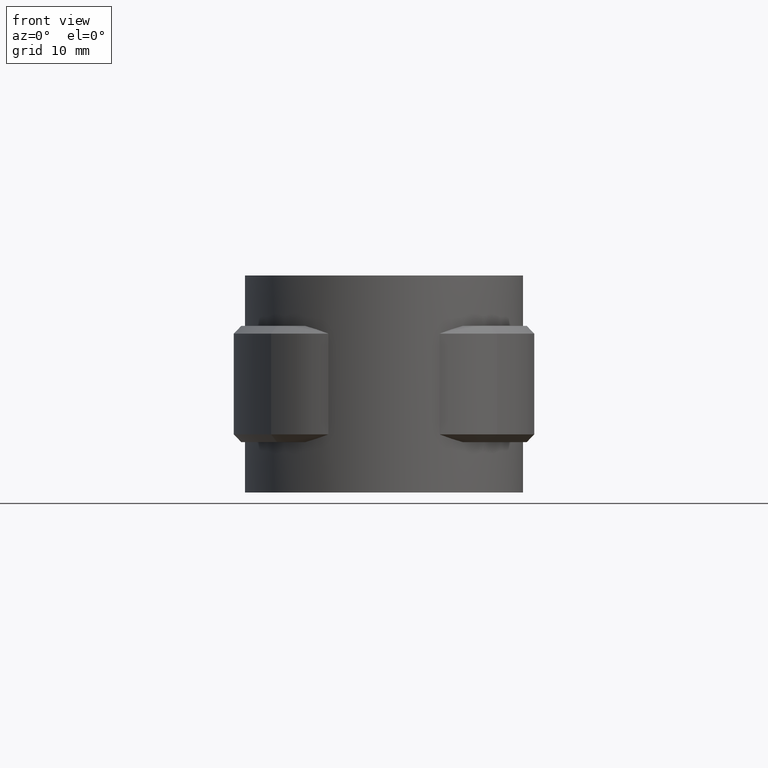
[diagram: clean part render]
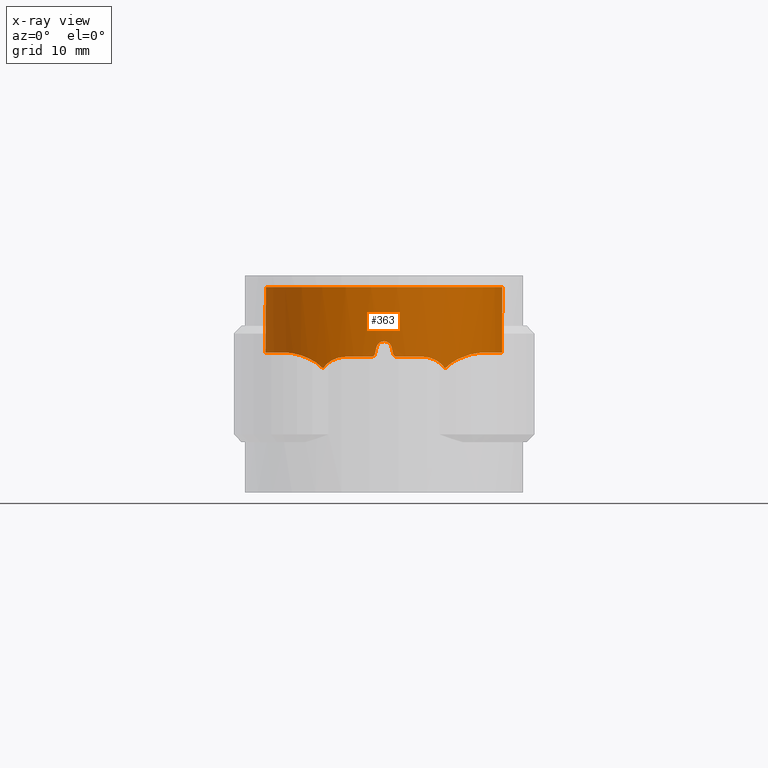
[diagram: x-ray — body ghosted, one internal face saturated and labeled with its STEP entity id]
A machine part, front view, then the same camera in x-ray: the body is ghosted and one INTERNAL B-rep face — a face not visible from any outside direction — is saturated and labeled: STEP entity #363.
In plain terms, the highlighted cylindrical surface (partial cylindrical patch) has radius 15.3 mm, axis along (0, 0, -1).
Its self-contained STEP definition (entity closure, byte-faithful):
#363 = ADVANCED_FACE( '', ( #702 ), #703, .T. );
#702 = FACE_OUTER_BOUND( '', #1430, .T. );
#703 = CYLINDRICAL_SURFACE( '', #1431, 15.3000000000000 );
#1430 = EDGE_LOOP( '', ( #2806, #2807, #2808, #2809, #2810, #2811, #2812, #2813, #2814, #2815, #2816, #2817, #2818, #2819, #2820, #2821 ) );
#1431 = AXIS2_PLACEMENT_3D( '', #2822, #2823, #2824 );
#2806 = ORIENTED_EDGE( '', *, *, #6200, .F. );
#2807 = ORIENTED_EDGE( '', *, *, #6201, .F. );
#2808 = ORIENTED_EDGE( '', *, *, #6202, .F. );
#2809 = ORIENTED_EDGE( '', *, *, #6203, .F. );
#2810 = ORIENTED_EDGE( '', *, *, #6204, .F. );
#2811 = ORIENTED_EDGE( '', *, *, #6205, .T. );
#2812 = ORIENTED_EDGE( '', *, *, #6206, .F. );
#2813 = ORIENTED_EDGE( '', *, *, #6207, .F. );
#2814 = ORIENTED_EDGE( '', *, *, #6208, .F. );
#2815 = ORIENTED_EDGE( '', *, *, #6209, .F. );
#2816 = ORIENTED_EDGE( '', *, *, #6210, .F. );
#2817 = ORIENTED_EDGE( '', *, *, #6211, .F. );
#2818 = ORIENTED_EDGE( '', *, *, #6212, .F. );
#2819 = ORIENTED_EDGE( '', *, *, #6213, .F. );
#2820 = ORIENTED_EDGE( '', *, *, #6214, .F. );
#2821 = ORIENTED_EDGE( '', *, *, #6215, .F. );
#2822 = CARTESIAN_POINT( '', ( 0.000000000000000, 0.000000000000000, 0.000000000000000 ) );
#2823 = DIRECTION( '', ( 0.000000000000000, 0.000000000000000, -1.00000000000000 ) );
#2824 = DIRECTION( '', ( 1.00000000000000, -6.12303176911189E-017, 0.000000000000000 ) );
#6200 = EDGE_CURVE( '', #7110, #7111, #7112, .T. );
#6201 = EDGE_CURVE( '', #7113, #7110, #7114, .T. );
#6202 = EDGE_CURVE( '', #7115, #7113, #7116, .T. );
#6203 = EDGE_CURVE( '', #7117, #7115, #7118, .T. );
#6204 = EDGE_CURVE( '', #7119, #7117, #7120, .T. );
#6205 = EDGE_CURVE( '', #7119, #7121, #7122, .T. );
#6206 = EDGE_CURVE( '', #7123, #7121, #7124, .T. );
#6207 = EDGE_CURVE( '', #7125, #7123, #7126, .T. );
#6208 = EDGE_CURVE( '', #7127, #7125, #7128, .T. );
#6209 = EDGE_CURVE( '', #7129, #7127, #7130, .T. );
#6210 = EDGE_CURVE( '', #7131, #7129, #7132, .T. );
#6211 = EDGE_CURVE( '', #7133, #7131, #7134, .T. );
#6212 = EDGE_CURVE( '', #7135, #7133, #7136, .T. );
#6213 = EDGE_CURVE( '', #7137, #7135, #7138, .T. );
#6214 = EDGE_CURVE( '', #7139, #7137, #7140, .T. );
#6215 = EDGE_CURVE( '', #7111, #7139, #7141, .T. );
#7110 = VERTEX_POINT( '', #8622 );
#7111 = VERTEX_POINT( '', #8623 );
#7112 = B_SPLINE_CURVE_WITH_KNOTS( '', 3, ( #8624, #8625, #8626, #8627, #8628, #8629, #8630, #8631, #8632, #8633 ), .UNSPECIFIED., .F., .F., ( 4, 2, 2, 2, 4 ), ( 3.13586956447804E-016, 0.000900885726990970, 0.00180177145398163, 0.00270265718097228, 0.00360354290796294 ), .UNSPECIFIED. );
#7113 = VERTEX_POINT( '', #8634 );
#7114 = B_SPLINE_CURVE_WITH_KNOTS( '', 3, ( #8635, #8636, #8637, #8638, #8639, #8640, #8641, #8642, #8643, #8644, #8645, #8646 ), .UNSPECIFIED., .F., .F., ( 4, 2, 2, 2, 2, 4 ), ( 0.000000000000000, 0.00173480708891775, 0.00346961417783549, 0.00433701772229437, 0.00520442126675325, 0.00693922835567100 ), .UNSPECIFIED. );
#7115 = VERTEX_POINT( '', #8647 );
#7116 = B_SPLINE_CURVE_WITH_KNOTS( '', 3, ( #8648, #8649, #8650, #8651, #8652, #8653, #8654, #8655, #8656, #8657, #8658, #8659, #8660, #8661, #8662, #8663, #8664, #8665, #8666, #8667, #8668, #8669, #8670, #8671 ), .UNSPECIFIED., .F., .F., ( 4, 2, 2, 2, 2, 2, 2, 2, 2, 2, 2, 4 ), ( 0.000000000000000, 0.00337849067238586, 0.00506773600857879, 0.00675698134477171, 0.00844622668096464, 0.0101354720171576, 0.0135139626895434, 0.0152032080257364, 0.0168924533619293, 0.0202709440343151, 0.0236494347067010, 0.0270279253790868 ), .UNSPECIFIED. );
#7117 = VERTEX_POINT( '', #8672 );
#7118 = LINE( '', #8673, #8674 );
#7119 = VERTEX_POINT( '', #8675 );
#7120 = CIRCLE( '', #8676, 15.3000000000000 );
#7121 = VERTEX_POINT( '', #8677 );
#7122 = LINE( '', #8678, #8679 );
#7123 = VERTEX_POINT( '', #8680 );
#7124 = B_SPLINE_CURVE_WITH_KNOTS( '', 3, ( #8681, #8682, #8683, #8684, #8685, #8686, #8687, #8688, #8689, #8690, #8691, #8692, #8693, #8694, #8695, #8696, #8697, #8698, #8699, #8700, #8701, #8702, #8703, #8704 ), .UNSPECIFIED., .F., .F., ( 4, 2, 2, 2, 2, 2, 2, 2, 2, 2, 2, 4 ), ( 0.000000000000000, 0.00337848974913548, 0.00506773462370322, 0.00675697949827097, 0.00844622437283871, 0.0101354692474065, 0.0135139589965419, 0.0152032038711097, 0.0168924487456774, 0.0202709384948129, 0.0236494282439484, 0.0270279179930839 ), .UNSPECIFIED. );
#7125 = VERTEX_POINT( '', #8705 );
#7126 = B_SPLINE_CURVE_WITH_KNOTS( '', 3, ( #8706, #8707, #8708, #8709, #8710, #8711, #8712, #8713, #8714, #8715, #8716, #8717, #8718, #8719, #8720, #8721 ), .UNSPECIFIED., .F., .F., ( 4, 2, 2, 2, 2, 2, 2, 4 ), ( 0.000000000000000, 0.000872914016519953, 0.00174582803303991, 0.00261874204955986, 0.00349165606607981, 0.00436457008259976, 0.00523748409911972, 0.00698331213215963 ), .UNSPECIFIED. );
#7127 = VERTEX_POINT( '', #8722 );
#7128 = B_SPLINE_CURVE_WITH_KNOTS( '', 3, ( #8723, #8724, #8725, #8726, #8727, #8728, #8729, #8730, #8731, #8732 ), .UNSPECIFIED., .F., .F., ( 4, 2, 2, 2, 4 ), ( 4.67088590647017E-018, 0.000900864509549203, 0.00180172901909840, 0.00270259352864760, 0.00360345803819680 ), .UNSPECIFIED. );
#7129 = VERTEX_POINT( '', #8733 );
#7130 = CIRCLE( '', #8734, 15.3000000000000 );
#7131 = VERTEX_POINT( '', #8735 );
#7132 = B_SPLINE_CURVE_WITH_KNOTS( '', 3, ( #8736, #8737, #8738, #8739, #8740, #8741 ), .UNSPECIFIED., .F., .F., ( 4, 2, 4 ), ( 2.16840434497101E-019, 0.000336655613353340, 0.000673311226706680 ), .UNSPECIFIED. );
#7133 = VERTEX_POINT( '', #8742 );
#7134 = ELLIPSE( '', #8743, 69.7000711111877, 15.3000000000000 );
#7135 = VERTEX_POINT( '', #8744 );
#7136 = B_SPLINE_CURVE_WITH_KNOTS( '', 3, ( #8745, #8746, #8747, #8748, #8749, #8750, #8751, #8752, #8753, #8754 ), .UNSPECIFIED., .F., .F., ( 4, 2, 2, 2, 4 ), ( 1.81745402302524E-018, 0.000671750243631354, 0.00134350048726271, 0.00201525073089406, 0.00268700097452541 ), .UNSPECIFIED. );
#7137 = VERTEX_POINT( '', #8755 );
#7138 = ELLIPSE( '', #8756, 69.7000355555816, 15.3000000000000 );
#7139 = VERTEX_POINT( '', #8757 );
#7140 = B_SPLINE_CURVE_WITH_KNOTS( '', 3, ( #8758, #8759, #8760, #8761, #8762, #8763 ), .UNSPECIFIED., .F., .F., ( 4, 2, 4 ), ( 5.89869754982740E-018, 0.000336638865399028, 0.000673277730798049 ), .UNSPECIFIED. );
#7141 = CIRCLE( '', #8764, 15.3000000000000 );
#8622 = CARTESIAN_POINT( '', ( 7.87194993485694, -13.1195428359035, -10.4995241636864 ) );
#8623 = CARTESIAN_POINT( '', ( 4.99999999999997, -14.4599446748596, -9.00000000000000 ) );
#8624 = CARTESIAN_POINT( '', ( 7.87194993485715, -13.1195428359033, -10.4995241636866 ) );
#8625 = CARTESIAN_POINT( '', ( 7.70710706974325, -13.2184513723917, -10.2628702400891 ) );
#8626 = CARTESIAN_POINT( '', ( 7.51936762164811, -13.3268833532557, -10.0545275191080 ) );
#8627 = CARTESIAN_POINT( '', ( 7.10097256380919, -13.5544420021188, -9.68691216739862 ) );
#8628 = CARTESIAN_POINT( '', ( 6.86771838668188, -13.6747400828048, -9.52707275819633 ) );
#8629 = CARTESIAN_POINT( '', ( 6.37702478648339, -13.9103424488261, -9.27037601346250 ) );
#8630 = CARTESIAN_POINT( '', ( 6.11728630490065, -14.0270040107362, -9.17111178448586 ) );
#8631 = CARTESIAN_POINT( '', ( 5.56885651894952, -14.2536265674630, -9.03499961048254 ) );
#8632 = CARTESIAN_POINT( '', ( 5.28798777383067, -14.3603634591958, -9.00000000000001 ) );
#8633 = CARTESIAN_POINT( '', ( 4.99999999999999, -14.4599446748596, -9.00000000000000 ) );
#8634 = CARTESIAN_POINT( '', ( 12.6110727878860, -8.66318897050281, -8.45031892622466 ) );
#8635 = CARTESIAN_POINT( '', ( 12.6110727878860, -8.66318897050281, -8.45031892622466 ) );
#8636 = CARTESIAN_POINT( '', ( 12.2788758344718, -9.14677070624523, -8.46550426621804 ) );
#8637 = CARTESIAN_POINT( '', ( 11.9238548471013, -9.60416666142807, -8.51112762149711 ) );
#8638 = CARTESIAN_POINT( '', ( 11.1720869257378, -10.4691358477663, -8.66777667678964 ) );
#8639 = CARTESIAN_POINT( '', ( 10.7753324756050, -10.8766247035371, -8.77919123784911 ) );
#8640 = CARTESIAN_POINT( '', ( 10.1521363631965, -11.4500574665978, -9.01175772916425 ) );
#8641 = CARTESIAN_POINT( '', ( 9.94005622851128, -11.6344502476262, -9.10037760025755 ) );
#8642 = CARTESIAN_POINT( '', ( 9.51689249424466, -11.9830675389670, -9.30064951037688 ) );
#8643 = CARTESIAN_POINT( '', ( 9.30477126306192, -12.1482591165118, -9.41258301335879 ) );
#8644 = CARTESIAN_POINT( '', ( 8.67117645873968, -12.6165197301259, -9.79164853274682 ) );
#8645 = CARTESIAN_POINT( '', ( 8.24676141617455, -12.8946495410040, -10.1027272918592 ) );
#8646 = CARTESIAN_POINT( '', ( 7.87194993485674, -13.1195428359036, -10.4995241636862 ) );
#8647 = CARTESIAN_POINT( '', ( 5.95508982035928, 14.0935057821485, -8.45226729138236 ) );
#8648 = CARTESIAN_POINT( '', ( 5.95508982035928, 14.0935057821485, -8.45226729138236 ) );
#8649 = CARTESIAN_POINT( '', ( 7.00540709996952, 13.6497032367324, -8.45390515077289 ) );
#8650 = CARTESIAN_POINT( '', ( 7.98833917484387, 13.0977071765000, -8.45433456352183 ) );
#8651 = CARTESIAN_POINT( '', ( 9.36474915869101, 12.1123840431278, -8.45230022380101 ) );
#8652 = CARTESIAN_POINT( '', ( 9.80897304357577, 11.7557295501313, -8.45130217704717 ) );
#8653 = CARTESIAN_POINT( '', ( 10.6542534858053, 10.9954541554968, -8.45011867942904 ) );
#8654 = CARTESIAN_POINT( '', ( 11.0522173135953, 10.5950394562952, -8.45024402883690 ) );
#8655 = CARTESIAN_POINT( '', ( 11.8003331836054, 9.75492211057009, -8.45109332326581 ) );
#8656 = CARTESIAN_POINT( '', ( 12.1504813178563, 9.31521621707748, -8.45168265912335 ) );
#8657 = CARTESIAN_POINT( '', ( 12.8027128447681, 8.39630831025687, -8.45228185336800 ) );
#8658 = CARTESIAN_POINT( '', ( 13.1058013748109, 7.91527764298564, -8.45228810635508 ) );
#8659 = CARTESIAN_POINT( '', ( 13.9332426752597, 6.42256552465585, -8.45140198263699 ) );
#8660 = CARTESIAN_POINT( '', ( 14.3656891301544, 5.38385352930454, -8.44980454309735 ) );
#8661 = CARTESIAN_POINT( '', ( 14.8408836696453, 3.76236596523588, -8.45110774447444 ) );
#8662 = CARTESIAN_POINT( '', ( 14.9703352046328, 3.20986824873690, -8.45178080891349 ) );
#8663 = CARTESIAN_POINT( '', ( 15.1675027346726, 2.08831298109672, -8.45256434646518 ) );
#8664 = CARTESIAN_POINT( '', ( 15.2339943467144, 1.52711420599460, -8.45266538063568 ) );
#8665 = CARTESIAN_POINT( '', ( 15.3405272523831, -0.157701726061646, -8.45194690359651 ) );
#8666 = CARTESIAN_POINT( '', ( 15.2886124364511, -1.28348506083065, -8.44984870711150 ) );
#8667 = CARTESIAN_POINT( '', ( 14.9297054039767, -3.53452976842065, -8.45101732554137 ) );
#8668 = CARTESIAN_POINT( '', ( 14.6293632335126, -4.61942105654775, -8.45276188964352 ) );
#8669 = CARTESIAN_POINT( '', ( 13.7956940440721, -6.71089750764228, -8.45205521599976 ) );
#8670 = CARTESIAN_POINT( '', ( 13.2566961461038, -7.72334993527380, -8.44956537244372 ) );
#8671 = CARTESIAN_POINT( '', ( 12.6110727878860, -8.66318897050281, -8.45031892622466 ) );
#8672 = CARTESIAN_POINT( '', ( 5.95508982035929, 14.0935057821485, 0.000000000000000 ) );
#8673 = CARTESIAN_POINT( '', ( 5.95508982035928, 14.0935057821485, 0.000000000000000 ) );
#8674 = VECTOR( '', #12176, 1000.00000000000 );
#8675 = CARTESIAN_POINT( '', ( -5.95508982035929, 14.0935057821485, 0.000000000000000 ) );
#8676 = AXIS2_PLACEMENT_3D( '', #12177, #12178, #12179 );
#8677 = CARTESIAN_POINT( '', ( -5.95508982035929, 14.0935057821485, -8.45226729138234 ) );
#8678 = CARTESIAN_POINT( '', ( -5.95508982035929, 14.0935057821485, 0.000000000000000 ) );
#8679 = VECTOR( '', #12180, 1000.00000000000 );
#8680 = CARTESIAN_POINT( '', ( -12.6110727878860, -8.66318897050281, -8.45031892622466 ) );
#8681 = CARTESIAN_POINT( '', ( -12.6110727878860, -8.66318897050281, -8.45031892622466 ) );
#8682 = CARTESIAN_POINT( '', ( -13.2566959368118, -7.72335023994182, -8.44956537268800 ) );
#8683 = CARTESIAN_POINT( '', ( -13.7872519999963, -6.72868324598036, -8.45203498790223 ) );
#8684 = CARTESIAN_POINT( '', ( -14.4157629811428, -5.15695177944743, -8.45258721794598 ) );
#8685 = CARTESIAN_POINT( '', ( -14.5977817794948, -4.61713079014229, -8.45237562317453 ) );
#8686 = CARTESIAN_POINT( '', ( -14.9001468151511, -3.52118651905474, -8.45143865004646 ) );
#8687 = CARTESIAN_POINT( '', ( -15.0196155399717, -2.96943056561901, -8.45072674235893 ) );
#8688 = CARTESIAN_POINT( '', ( -15.1971057085317, -1.85858734965745, -8.45014450833673 ) );
#8689 = CARTESIAN_POINT( '', ( -15.2551221059123, -1.29949949571398, -8.45053515373791 ) );
#8690 = CARTESIAN_POINT( '', ( -15.3093824020463, -0.173953653516129, -8.45159166864485 ) );
#8691 = CARTESIAN_POINT( '', ( -15.3054876661238, 0.394585777385050, -8.45218127623430 ) );
#8692 = CARTESIAN_POINT( '', ( -15.1981365292448, 2.09791529208462, -8.45291107734748 ) );
#8693 = CARTESIAN_POINT( '', ( -15.0026932763093, 3.20594681079866, -8.45156493687627 ) );
#8694 = CARTESIAN_POINT( '', ( -14.5292207707281, 4.82793630028559, -8.45024644846661 ) );
#8695 = CARTESIAN_POINT( '', ( -14.3405455744282, 5.36310958643269, -8.45027416187243 ) );
#8696 = CARTESIAN_POINT( '', ( -13.9022635465869, 6.41414531247766, -8.45111113771658 ) );
#8697 = CARTESIAN_POINT( '', ( -13.6558614780494, 6.92272416588369, -8.45169797640165 ) );
#8698 = CARTESIAN_POINT( '', ( -12.8377048184716, 8.39940386766398, -8.45257732633628 ) );
#8699 = CARTESIAN_POINT( '', ( -12.1873217869345, 9.31977448680834, -8.45153540932947 ) );
#8700 = CARTESIAN_POINT( '', ( -10.6719581828801, 11.0226275164369, -8.44980959461244 ) );
#8701 = CARTESIAN_POINT( '', ( -9.83433755861949, 11.7746813443322, -8.45159435834309 ) );
#8702 = CARTESIAN_POINT( '', ( -8.00503165778895, 13.0872756574940, -8.45432152731596 ) );
#8703 = CARTESIAN_POINT( '', ( -7.00540523774509, 13.6497040235993, -8.45390514786894 ) );
#8704 = CARTESIAN_POINT( '', ( -5.95508982035929, 14.0935057821485, -8.45226729138236 ) );
#8705 = CARTESIAN_POINT( '', ( -7.87194993485689, -13.1195428359035, -10.4995241636861 ) );
#8706 = CARTESIAN_POINT( '', ( -7.87194993485688, -13.1195428359035, -10.4995241636861 ) );
#8707 = CARTESIAN_POINT( '', ( -8.05939537814651, -13.0070723661967, -10.3010836962969 ) );
#8708 = CARTESIAN_POINT( '', ( -8.25746507767268, -12.8827038107875, -10.1266583800327 ) );
#8709 = CARTESIAN_POINT( '', ( -8.66490758756174, -12.6122624252938, -9.81119537813222 ) );
#8710 = CARTESIAN_POINT( '', ( -8.87441539982930, -12.4661368171058, -9.67037758277428 ) );
#8711 = CARTESIAN_POINT( '', ( -9.29956873942730, -12.1522770332228, -9.41538305051103 ) );
#8712 = CARTESIAN_POINT( '', ( -9.51309261095430, -11.9860556200446, -9.30262256282512 ) );
#8713 = CARTESIAN_POINT( '', ( -9.93444728538541, -11.6392103462948, -9.10286134638045 ) );
#8714 = CARTESIAN_POINT( '', ( -10.1431055978119, -11.4579871911045, -9.01546695239504 ) );
#8715 = CARTESIAN_POINT( '', ( -10.5546748924818, -11.0800225430228, -8.86121552436673 ) );
#8716 = CARTESIAN_POINT( '', ( -10.7575951567851, -10.8832808653199, -8.79438198139237 ) );
#8717 = CARTESIAN_POINT( '', ( -11.1564807650936, -10.4739960324997, -8.67888545692043 ) );
#8718 = CARTESIAN_POINT( '', ( -11.3529232679605, -10.2608434184701, -8.63022992225566 ) );
#8719 = CARTESIAN_POINT( '', ( -11.9228597301939, -9.60575418175794, -8.51107055033212 ) );
#8720 = CARTESIAN_POINT( '', ( -12.2792982932485, -9.14615572965859, -8.46548495484239 ) );
#8721 = CARTESIAN_POINT( '', ( -12.6110727878860, -8.66318897050281, -8.45031892622466 ) );
#8722 = CARTESIAN_POINT( '', ( -5.00000000000004, -14.4599446748596, -9.00000000000000 ) );
#8723 = CARTESIAN_POINT( '', ( -5.00000000000004, -14.4599446748596, -9.00000000000000 ) );
#8724 = CARTESIAN_POINT( '', ( -5.28808184441337, -14.3603309312074, -9.00000000000000 ) );
#8725 = CARTESIAN_POINT( '', ( -5.56723513784180, -14.2541891279682, -9.03500257347791 ) );
#8726 = CARTESIAN_POINT( '', ( -6.10941625207096, -14.0303616430525, -9.16876022372331 ) );
#8727 = CARTESIAN_POINT( '', ( -6.37443029805195, -13.9115336754072, -9.26926948772167 ) );
#8728 = CARTESIAN_POINT( '', ( -6.86536044840710, -13.6759261748577, -9.52559103607324 ) );
#8729 = CARTESIAN_POINT( '', ( -7.09462436520735, -13.5578200662850, -9.68185526001337 ) );
#8730 = CARTESIAN_POINT( '', ( -7.51847136578739, -13.3274441718954, -10.0532280477037 ) );
#8731 = CARTESIAN_POINT( '', ( -7.70718302556167, -13.2184057976024, -10.2629792847992 ) );
#8732 = CARTESIAN_POINT( '', ( -7.87194993485689, -13.1195428359035, -10.4995241636861 ) );
#8733 = CARTESIAN_POINT( '', ( -1.65000000000003, -15.2107692113187, -8.99999999999997 ) );
#8734 = AXIS2_PLACEMENT_3D( '', #12181, #12182, #12183 );
#8735 = CARTESIAN_POINT( '', ( -1.16219512100915, -15.2557957019850, -8.60975609337373 ) );
#8736 = CARTESIAN_POINT( '', ( -1.16219512100915, -15.2557957019850, -8.60975609337373 ) );
#8737 = CARTESIAN_POINT( '', ( -1.18718019133930, -15.2538923252354, -8.72080085484746 ) );
#8738 = CARTESIAN_POINT( '', ( -1.24937339150256, -15.2491638273020, -8.81997356472241 ) );
#8739 = CARTESIAN_POINT( '', ( -1.42680663648855, -15.2335863842157, -8.96159450174561 ) );
#8740 = CARTESIAN_POINT( '', ( -1.53684210786510, -15.2230441015250, -8.99999999999994 ) );
#8741 = CARTESIAN_POINT( '', ( -1.65000000000003, -15.2107692113187, -8.99999999999994 ) );
#8742 = CARTESIAN_POINT( '', ( -0.975610000000025, -15.2688632559173, -7.78048800000004 ) );
#8743 = AXIS2_PLACEMENT_3D( '', #12184, #12185, #12186 );
#8744 = CARTESIAN_POINT( '', ( 0.975609757981813, -15.2688632713811, -7.78048781325256 ) );
#8745 = CARTESIAN_POINT( '', ( 0.975609757981811, -15.2688632713811, -7.78048781325256 ) );
#8746 = CARTESIAN_POINT( '', ( 0.925753256865696, -15.2720488712600, -7.55890345399290 ) );
#8747 = CARTESIAN_POINT( '', ( 0.801992275849186, -15.2799961721199, -7.36098178575223 ) );
#8748 = CARTESIAN_POINT( '', ( 0.447466370338898, -15.2944842501451, -7.07733552221451 ) );
#8749 = CARTESIAN_POINT( '', ( 0.227143439189080, -15.3000000283266, -6.99999958588353 ) );
#8750 = CARTESIAN_POINT( '', ( -0.227147255240431, -15.2999999716731, -7.00000040725266 ) );
#8751 = CARTESIAN_POINT( '', ( -0.447547321265032, -15.2944813833536, -7.07738605412701 ) );
#8752 = CARTESIAN_POINT( '', ( -0.801987349730737, -15.2799959319822, -7.36099176213694 ) );
#8753 = CARTESIAN_POINT( '', ( -0.925753523622181, -15.2720488550089, -7.55890355263458 ) );
#8754 = CARTESIAN_POINT( '', ( -0.975610000000020, -15.2688632559173, -7.78048800000004 ) );
#8755 = CARTESIAN_POINT( '', ( 1.16219499999999, -15.2557957112035, -8.60975599999999 ) );
#8756 = AXIS2_PLACEMENT_3D( '', #12187, #12188, #12189 );
#8757 = CARTESIAN_POINT( '', ( 1.64999999999995, -15.2107692113187, -8.99999999999997 ) );
#8758 = CARTESIAN_POINT( '', ( 1.64999999999995, -15.2107692113187, -8.99999999999995 ) );
#8759 = CARTESIAN_POINT( '', ( 1.53684205018555, -15.2230441077818, -9.00000000048562 ) );
#8760 = CARTESIAN_POINT( '', ( 1.42680454084002, -15.2335865225725, -8.96158994493370 ) );
#8761 = CARTESIAN_POINT( '', ( 1.24939104558132, -15.2491623230159, -8.81999061126030 ) );
#8762 = CARTESIAN_POINT( '', ( 1.18718009144230, -15.2538923330449, -8.72080085308014 ) );
#8763 = CARTESIAN_POINT( '', ( 1.16219499999998, -15.2557957112035, -8.60975599999999 ) );
#8764 = AXIS2_PLACEMENT_3D( '', #12190, #12191, #12192 );
#12176 = DIRECTION( '', ( 0.000000000000000, 0.000000000000000, -1.00000000000000 ) );
#12177 = CARTESIAN_POINT( '', ( 0.000000000000000, 0.000000000000000, 0.000000000000000 ) );
#12178 = DIRECTION( '', ( 0.000000000000000, 0.000000000000000, 1.00000000000000 ) );
#12179 = DIRECTION( '', ( 1.00000000000000, 0.000000000000000, 0.000000000000000 ) );
#12180 = DIRECTION( '', ( 0.000000000000000, 0.000000000000000, -1.00000000000000 ) );
#12181 = CARTESIAN_POINT( '', ( 0.000000000000000, 0.000000000000000, -9.00000000000001 ) );
#12182 = DIRECTION( '', ( 6.12303176911189E-017, -3.05720745347993E-016, -1.00000000000000 ) );
#12183 = DIRECTION( '', ( 0.000000000000000, 1.00000000000000, -3.05720745347993E-016 ) );
#12184 = CARTESIAN_POINT( '', ( 0.000000000000000, 0.000000000000000, -3.44443890776446 ) );
#12185 = DIRECTION( '', ( 0.975609806487711, -1.18038009681476E-016, -0.219511971165610 ) );
#12186 = DIRECTION( '', ( 0.219511971165610, -2.65585237103421E-017, 0.975609806487711 ) );
#12187 = CARTESIAN_POINT( '', ( 0.000000000000000, 0.000000000000000, -3.44444212055027 ) );
#12188 = DIRECTION( '', ( -0.975609781292647, -1.61807527429124E-017, -0.219512083143762 ) );
#12189 = DIRECTION( '', ( -0.219512083143762, -3.64066741594651E-018, 0.975609781292647 ) );
#12190 = CARTESIAN_POINT( '', ( 0.000000000000000, 0.000000000000000, -9.00000000000001 ) );
#12191 = DIRECTION( '', ( 6.12303176911189E-017, -3.05720745347993E-016, -1.00000000000000 ) );
#12192 = DIRECTION( '', ( 0.000000000000000, 1.00000000000000, -3.05720745347993E-016 ) );